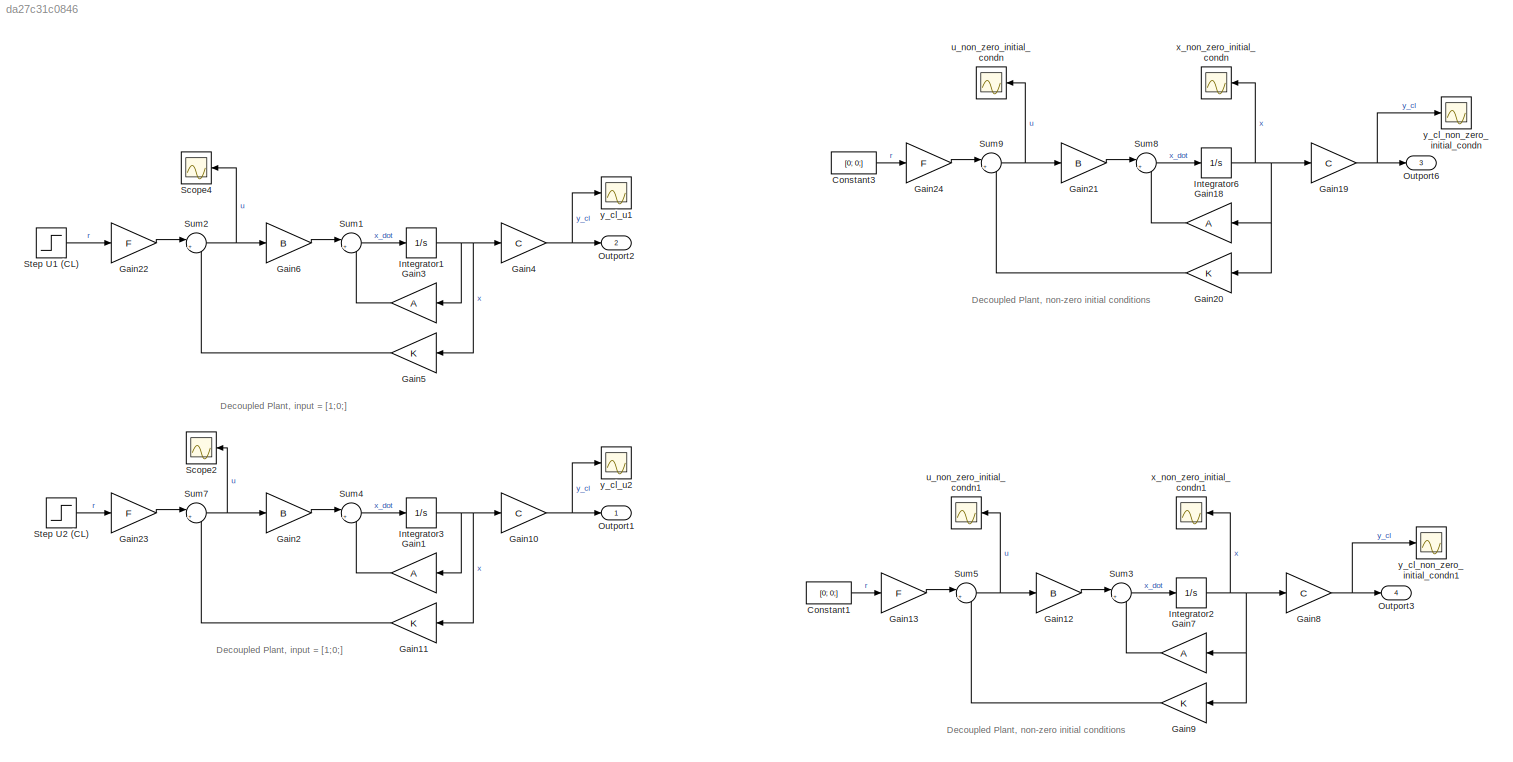
MODEL slx_da27c31c0846
KIND model
CONFIG AbsTol = auto
CONFIG EnableMultiTasking = off
CONFIG FixedStep = auto
CONFIG MaxStep = auto
CONFIG MinStep = auto
CONFIG RelTol = 1e-3
CONFIG SampleTimeConstraint = Unconstrained
CONFIG SolverName = VariableStepAuto
CONFIG StartTime = 0.0
CONFIG StopTime = 5
BLOCK [Constant] Constant1
  Value = [0; 0;]
BLOCK [Constant] Constant3
  Value = [0; 0;]
BLOCK [Gain] Gain1
  Gain = A
  Multiplication = Matrix(K*u)
BLOCK [Gain] Gain10
  Gain = C
  Multiplication = Matrix(K*u)
BLOCK [Gain] Gain11
  Gain = K
  Multiplication = Matrix(K*u)
BLOCK [Gain] Gain12
  Gain = B
  Multiplication = Matrix(K*u)
BLOCK [Gain] Gain13
  Gain = F
  Multiplication = Matrix(K*u)
BLOCK [Gain] Gain18
  Gain = A
  Multiplication = Matrix(K*u)
BLOCK [Gain] Gain19
  Gain = C
  Multiplication = Matrix(K*u)
BLOCK [Gain] Gain2
  Gain = B
  Multiplication = Matrix(K*u)
BLOCK [Gain] Gain20
  Gain = K
  Multiplication = Matrix(K*u)
BLOCK [Gain] Gain21
  Gain = B
  Multiplication = Matrix(K*u)
BLOCK [Gain] Gain22
  Gain = F
  Multiplication = Matrix(K*u)
BLOCK [Gain] Gain23
  Gain = F
  Multiplication = Matrix(K*u)
BLOCK [Gain] Gain24
  Gain = F
  Multiplication = Matrix(K*u)
BLOCK [Gain] Gain3
  Gain = A
  Multiplication = Matrix(K*u)
BLOCK [Gain] Gain4
  Gain = C
  Multiplication = Matrix(K*u)
BLOCK [Gain] Gain5
  Gain = K
  Multiplication = Matrix(K*u)
BLOCK [Gain] Gain6
  Gain = B
  Multiplication = Matrix(K*u)
BLOCK [Gain] Gain7
  Gain = A
  Multiplication = Matrix(K*u)
BLOCK [Gain] Gain8
  Gain = C
  Multiplication = Matrix(K*u)
BLOCK [Gain] Gain9
  Gain = K
  Multiplication = Matrix(K*u)
BLOCK [Integrator] Integrator1
BLOCK [Integrator] Integrator2
BLOCK [Integrator] Integrator3
BLOCK [Integrator] Integrator6
  InitialCondition = x_0
BLOCK [Outport] Outport1
BLOCK [Outport] Outport2
  Port = 2
BLOCK [Outport] Outport3
  Port = 4
BLOCK [Outport] Outport6
  Port = 3
BLOCK [Scope] Scope2
  Floating = off
  NumInputPorts = 1
  ScopeSpecificationString = Simulink.scopes.TimeScopeBlockCfg('CurrentConfiguration', extmgr.ConfigurationSet(extmgr.Configuration('Core','General UI',true),extmgr.Configuration('Core','Source UI',true),extmgr.Configuration('Sources','WiredSimulink',true,'DataLoggingVariableName','ScopeData4'),extmgr.Configuration('Visuals','Time Domain',true,'SerializedDisplays',{struct('MinYLimReal','-2934996960793073152.00000','MaxYLimRea...<+1798ch>
BLOCK [Scope] Scope4
  Floating = off
  NumInputPorts = 1
  ScopeSpecificationString = Simulink.scopes.TimeScopeBlockCfg('CurrentConfiguration', extmgr.ConfigurationSet(extmgr.Configuration('Core','General UI',true),extmgr.Configuration('Core','Source UI',true),extmgr.Configuration('Sources','WiredSimulink',true,'DataLoggingVariableName','ScopeData6'),extmgr.Configuration('Visuals','Time Domain',true,'SerializedDisplays',{struct('MinYLimReal','-162111888822875488.00000','MaxYLimReal...<+1768ch>
BLOCK [Step] Step U1 (CL)
  After = [1; 0;];
  Before = [0; 0;];
  SampleTime = 0
  Time = 0
BLOCK [Step] Step U2 (CL)
  After = [0; 1;];
  Before = [0; 0;];
  SampleTime = 0
  Time = 0
BLOCK [Sum] Sum1
  Inputs = |++
BLOCK [Sum] Sum2
  Inputs = |+-
BLOCK [Sum] Sum3
  Inputs = |++
BLOCK [Sum] Sum4
  Inputs = |++
BLOCK [Sum] Sum5
  Inputs = |+-
BLOCK [Sum] Sum7
  Inputs = |+-
BLOCK [Sum] Sum8
  Inputs = |++
BLOCK [Sum] Sum9
  Inputs = |+-
BLOCK [Scope] u_non_zero_initial_condn
  Floating = off
  NumInputPorts = 1
  ScopeSpecificationString = Simulink.scopes.TimeScopeBlockCfg('CurrentConfiguration', extmgr.ConfigurationSet(extmgr.Configuration('Core','General UI',true),extmgr.Configuration('Core','Source UI',true),extmgr.Configuration('Sources','WiredSimulink',true,'DataLoggingVariableName','ScopeData2'),extmgr.Configuration('Visuals','Time Domain',true,'SerializedDisplays',{struct('MinYLimReal','-69900.07123','MaxYLimReal','18146.7018...<+1443ch>
BLOCK [Scope] u_non_zero_initial_condn1
  Floating = off
  NumInputPorts = 1
  ScopeSpecificationString = Simulink.scopes.TimeScopeBlockCfg('CurrentConfiguration', extmgr.ConfigurationSet(extmgr.Configuration('Core','General UI',true),extmgr.Configuration('Core','Source UI',true),extmgr.Configuration('Sources','WiredSimulink',true,'DataLoggingVariableName','ScopeData1'),extmgr.Configuration('Visuals','Time Domain',true,'SerializedDisplays',{struct('MinYLimReal','-69900.07123','MaxYLimReal','18146.7018...<+1443ch>
BLOCK [Scope] x_non_zero_initial_condn
  Floating = off
  NumInputPorts = 1
  ScopeSpecificationString = Simulink.scopes.TimeScopeBlockCfg('CurrentConfiguration', extmgr.ConfigurationSet(extmgr.Configuration('Core','General UI',true),extmgr.Configuration('Core','Source UI',true),extmgr.Configuration('Sources','WiredSimulink',true,'DataLoggingVariableName','ScopeData4'),extmgr.Configuration('Visuals','Time Domain',true,'SerializedDisplays',{struct('MinYLimReal','-622913058.123','MaxYLimReal','30227735...<+1947ch>
BLOCK [Scope] x_non_zero_initial_condn1
  Floating = off
  NumInputPorts = 1
  ScopeSpecificationString = Simulink.scopes.TimeScopeBlockCfg('CurrentConfiguration', extmgr.ConfigurationSet(extmgr.Configuration('Core','General UI',true),extmgr.Configuration('Core','Source UI',true),extmgr.Configuration('Sources','WiredSimulink',true,'DataLoggingVariableName','ScopeData2'),extmgr.Configuration('Visuals','Time Domain',true,'SerializedDisplays',{struct('MinYLimReal','-1.00000','MaxYLimReal','1.00000','YLab...<+1451ch>
BLOCK [Scope] y_cl_non_zero_initial_condn
  Floating = off
  NumInputPorts = 1
  ScopeSpecificationString = Simulink.scopes.TimeScopeBlockCfg('CurrentConfiguration', extmgr.ConfigurationSet(extmgr.Configuration('Core','General UI',true),extmgr.Configuration('Core','Source UI',true),extmgr.Configuration('Sources','WiredSimulink',true,'DataLoggingVariableName','ScopeData3'),extmgr.Configuration('Visuals','Time Domain',true,'SerializedDisplays',{struct('MinYLimReal','-1.63642','MaxYLimReal','0.52516','YLab...<+1419ch>
BLOCK [Scope] y_cl_non_zero_initial_condn1
  Floating = off
  NumInputPorts = 1
  ScopeSpecificationString = Simulink.scopes.TimeScopeBlockCfg('CurrentConfiguration', extmgr.ConfigurationSet(extmgr.Configuration('Core','General UI',true),extmgr.Configuration('Core','Source UI',true),extmgr.Configuration('Sources','WiredSimulink',true,'DataLoggingVariableName','ScopeData3'),extmgr.Configuration('Visuals','Time Domain',true,'SerializedDisplays',{struct('MinYLimReal','-1.63642','MaxYLimReal','0.52516','YLab...<+1419ch>
BLOCK [Scope] y_cl_u1
  Floating = off
  NumInputPorts = 1
  ScopeSpecificationString = Simulink.scopes.TimeScopeBlockCfg('CurrentConfiguration', extmgr.ConfigurationSet(extmgr.Configuration('Core','General UI',true),extmgr.Configuration('Core','Source UI',true),extmgr.Configuration('Sources','WiredSimulink',true,'DataLoggingVariableName','ScopeData3'),extmgr.Configuration('Visuals','Time Domain',true,'SerializedDisplays',{struct('MinYLimReal','-2.0625','MaxYLimReal','18.5625','YLabe...<+1636ch>
BLOCK [Scope] y_cl_u2
  Floating = off
  NumInputPorts = 1
  ScopeSpecificationString = Simulink.scopes.TimeScopeBlockCfg('CurrentConfiguration', extmgr.ConfigurationSet(extmgr.Configuration('Core','General UI',true),extmgr.Configuration('Core','Source UI',true),extmgr.Configuration('Sources','WiredSimulink',true,'DataLoggingVariableName','ScopeData2'),extmgr.Configuration('Visuals','Time Domain',true,'SerializedDisplays',{struct('MinYLimReal','-114.92188','MaxYLimReal','16.79687','Y...<+1648ch>
ANNOTATION (root): Decoupled Plant, input = [1;0;]
ANNOTATION (root): Decoupled Plant, non-zero initial conditions
LINE Constant1:1 -> Gain13:1
LINE Constant3:1 -> Gain24:1
NET Gain10:1 -> Outport1:1, y_cl_u2:1
LINE Gain11:1 -> Sum7:2
LINE Gain12:1 -> Sum3:1
LINE Gain13:1 -> Sum5:1
LINE Gain18:1 -> Sum8:2
NET Gain19:1 -> Outport6:1, y_cl_non_zero_initial_condn:1
LINE Gain1:1 -> Sum4:2
LINE Gain20:1 -> Sum9:2
LINE Gain21:1 -> Sum8:1
LINE Gain22:1 -> Sum2:1
LINE Gain23:1 -> Sum7:1
LINE Gain24:1 -> Sum9:1
LINE Gain2:1 -> Sum4:1
LINE Gain3:1 -> Sum1:2
NET Gain4:1 -> Outport2:1, y_cl_u1:1
LINE Gain5:1 -> Sum2:2
LINE Gain6:1 -> Sum1:1
LINE Gain7:1 -> Sum3:2
NET Gain8:1 -> Outport3:1, y_cl_non_zero_initial_condn1:1
LINE Gain9:1 -> Sum5:2
NET Integrator1:1 -> Gain3:1, Gain4:1, Gain5:1
NET Integrator2:1 -> Gain7:1, Gain8:1, Gain9:1, x_non_zero_initial_condn1:1
NET Integrator3:1 -> Gain10:1, Gain11:1, Gain1:1
NET Integrator6:1 -> Gain18:1, Gain19:1, Gain20:1, x_non_zero_initial_condn:1
LINE Step U1 (CL):1 -> Gain22:1
LINE Step U2 (CL):1 -> Gain23:1
LINE Sum1:1 -> Integrator1:1
NET Sum2:1 -> Gain6:1, Scope4:1
LINE Sum3:1 -> Integrator2:1
LINE Sum4:1 -> Integrator3:1
NET Sum5:1 -> Gain12:1, u_non_zero_initial_condn1:1
NET Sum7:1 -> Gain2:1, Scope2:1
LINE Sum8:1 -> Integrator6:1
NET Sum9:1 -> Gain21:1, u_non_zero_initial_condn:1
note: NET lines group one-source signal fan-out (src -> all destinations, sorted); 1:1 wires keep LINE
